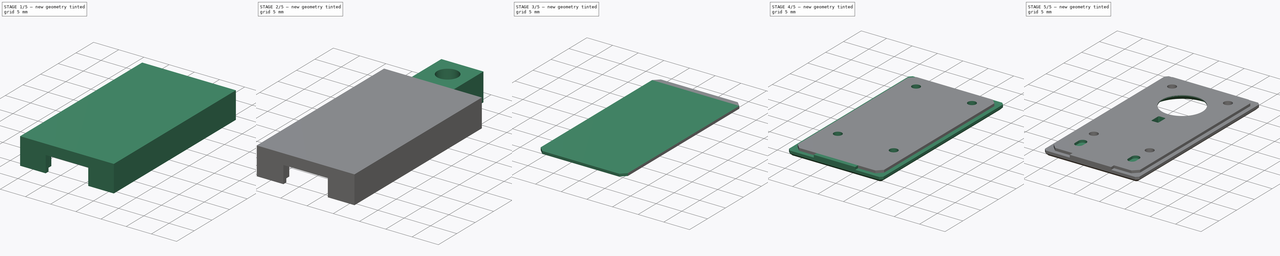
[diagram: build sequence overview — one tinted view per stage of 5, left to right]
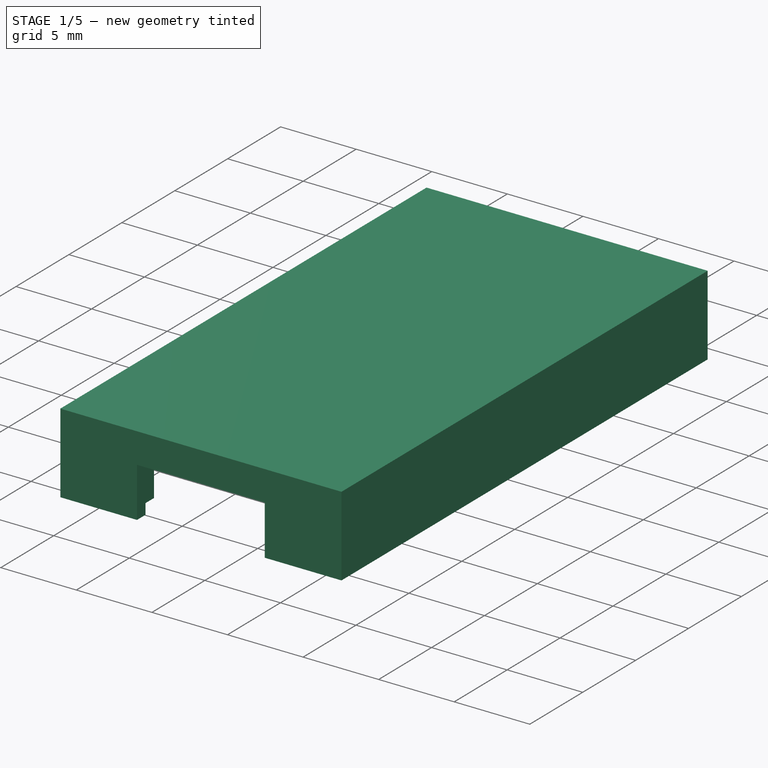
[diagram: stage 1 of 5 — iso view after this stage's code; geometry added in this stage tinted green]
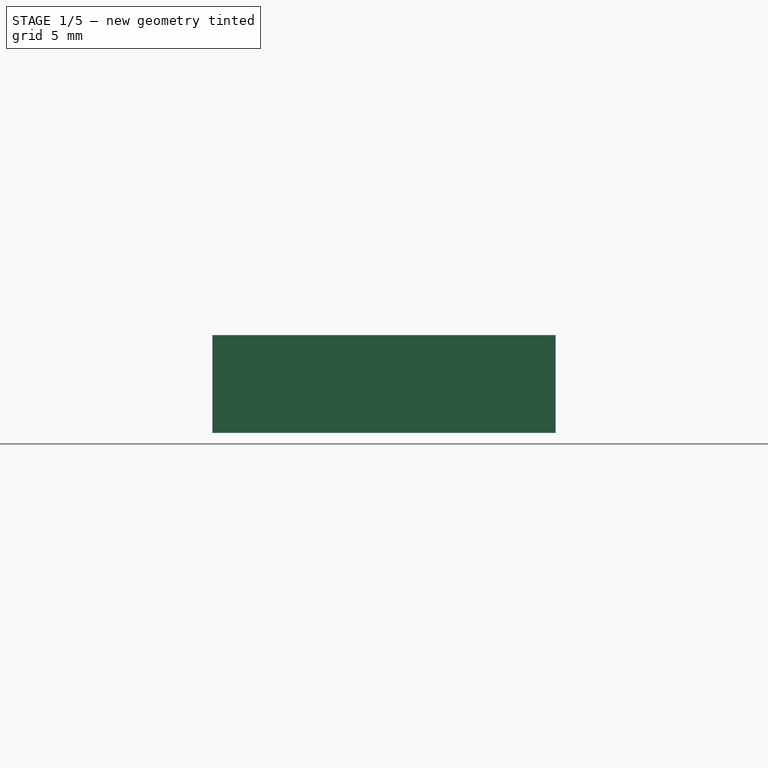
[diagram: stage 1 of 5 — front view after this stage's code; geometry added in this stage tinted green]
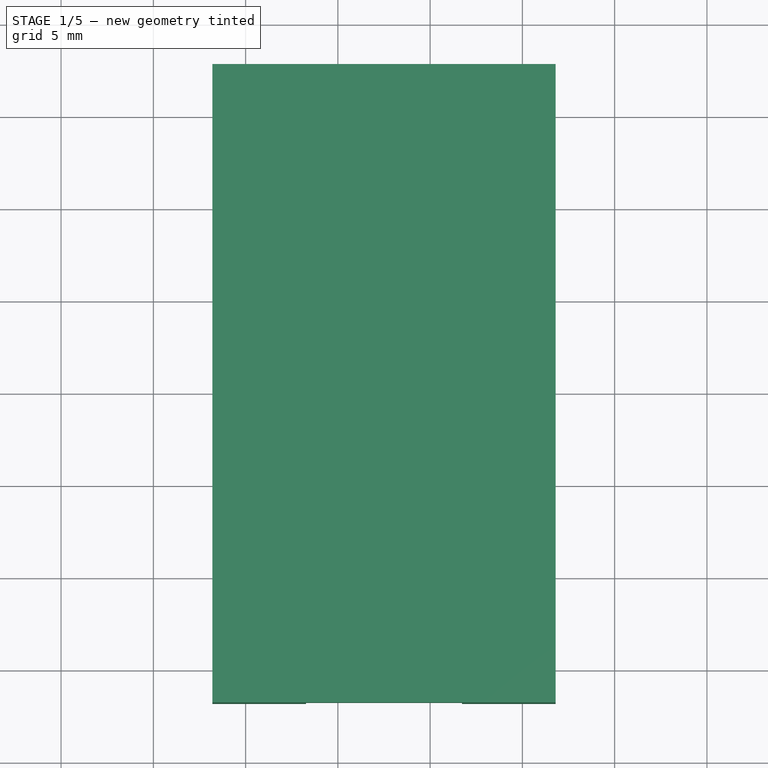
[diagram: stage 1 of 5 — top view after this stage's code; geometry added in this stage tinted green]
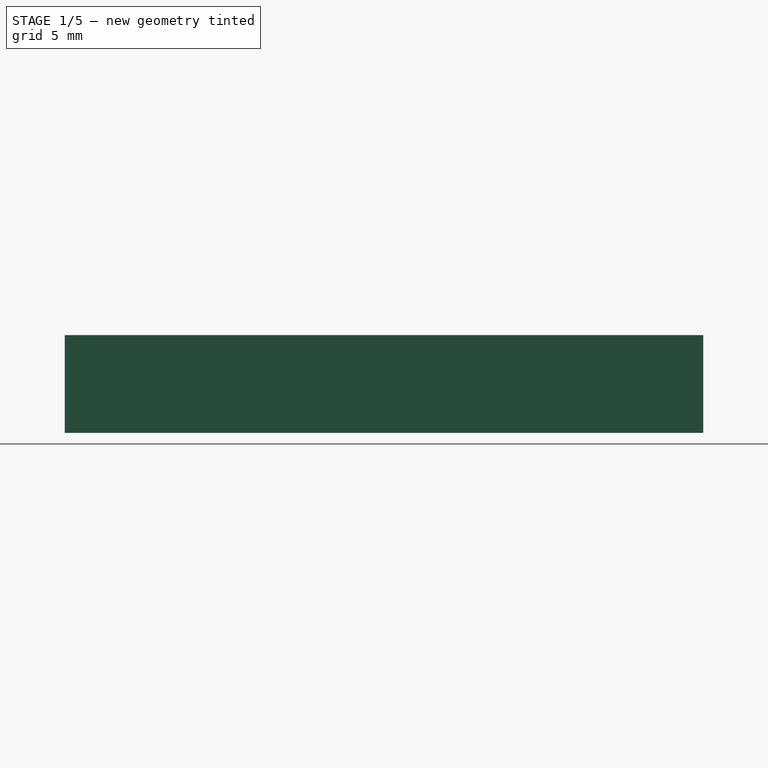
[diagram: stage 1 of 5 — right view after this stage's code; geometry added in this stage tinted green]
FCSTD DOCUMENT  (FreeCAD 1.0R39109 (Git))
Label: iPicoV5_Enclosure
License: All rights reserved
LicenseURL: https://en.wikipedia.org/wiki/All_rights_reserved
objects: Part::Feature×40, Sketcher::SketchObject×14, PartDesign::Pad×7, PartDesign::Pocket×6, PartDesign::Chamfer×5, App::Part×3, PartDesign::SubShapeBinder×3, PartDesign::Body×2, Spreadsheet::Sheet×1, PartDesign::Thickness×1, PartDesign::Fillet×1, PartDesign::Hole×1
note: 136 computed .brp shape members not serialized (recipe doc carries the construction recipe); baked Part::Feature solids carry a one-line shape summary decoded from their .brp

FEATURE [Part::Feature] Part__Feature  label="R_0402_1005Metric"
  Placement = pos=(10.3,9.85,1.195) rot=(0,0,1;1.5708rad)
  shape: bbox 0.5 x 1 x 0.35 mm, 26 faces (baked)
FEATURE [Part::Feature] Part__Feature001  label="C_0402_1005Metric"
  Placement = pos=(13.1,21.35,1.195) rot=(0,0,1;1.5708rad)
  shape: bbox 0.5 x 1 x 0.5 mm, 28 faces (baked)
FEATURE [Part::Feature] Part__Feature002  label="R_0402_1005Metric001"
  Placement = pos=(2,11.75,1.195) rot=(0,0,1;1.5708rad)
  shape: bbox 0.5 x 1 x 0.35 mm, 26 faces (baked)
FEATURE [Part::Feature] Part__Feature003  label="C_0402_1005Metric001"
  Placement = pos=(13.1,16.98,1.195) rot=(0,0,-1;1.5708rad)
  shape: bbox 0.5 x 1 x 0.5 mm, 28 faces (baked)
FEATURE [Part::Feature] Part__Feature004  label="C_0402_1005Metric002"
  Placement = pos=(4.95,7.5,1.195) rot=(0,0,1;3.14159rad)
  shape: bbox 1 x 0.5 x 0.5 mm, 28 faces (baked)
FEATURE [Part::Feature] Part__Feature005  label="C_0402_1005Metric003"
  Placement = pos=(11.5,12.05,1.195) rot=(0,0,1;3.14159rad)
  shape: bbox 1 x 0.5 x 0.5 mm, 28 faces (baked)
FEATURE [Part::Feature] Part__Feature006  label="R_0402_1005Metric002"
  Placement = pos=(7.2,12.1,1.195) rot=(0,0,1;0rad)
  shape: bbox 1 x 0.5 x 0.35 mm, 26 faces (baked)
FEATURE [Part::Feature] Part__Feature007  label="C_0402_1005Metric004"
  Placement = pos=(5.7,12.45,1.195) rot=(0,0,1;1.5708rad)
  shape: bbox 0.5 x 1 x 0.5 mm, 28 faces (baked)
FEATURE [Part::Feature] Part__Feature008  label="C_0402_1005Metric005"
  Placement = pos=(2,15.85,1.195) rot=(0,0,-1;1.5708rad)
  shape: bbox 0.5 x 1 x 0.5 mm, 28 faces (baked)
FEATURE [Part::Feature] Part__Feature009  label="C_0402_1005Metric006"
  Placement = pos=(7.8,14.3,1.195) rot=(0,0,-1;1.5708rad)
  shape: bbox 0.5 x 1 x 0.5 mm, 28 faces (baked)
FEATURE [Part::Feature] Part__Feature010  label="R_0402_1005Metric003"
  Placement = pos=(9.25,9.85,1.195) rot=(0,0,-1;1.5708rad)
  shape: bbox 0.5 x 1 x 0.35 mm, 26 faces (baked)
FEATURE [Part::Feature] Part__Feature011  label="R_0402_1005Metric004"
  Placement = pos=(8.6,25.25,1.195) rot=(0,0,1;3.14159rad)
  shape: bbox 1 x 0.5 x 0.35 mm, 26 faces (baked)
FEATURE [Part::Feature] Part__Feature012  label="COMPOUND"
  shape: bbox 10.65 x 13.5 x 2.4 mm, 183 faces (baked)
FEATURE [Part::Feature] Part__Feature013  label="COMPOUND001"
  shape: bbox 8.448 x 11.9 x 2.598 mm, 261 faces (baked)
FEATURE [App::Part] GT_USB_8016A  label="GT_USB-8016A"
  Group = -> [Part__Feature012,Part__Feature013]
  Origin = -> Origin
  Placement = pos=(7.5,3.8,1.195) rot=(0,0,1;0rad)
FEATURE [Part::Feature] Part__Feature014  label="R_0402_1005Metric005"
  Placement = pos=(13.3,11.55,1.195) rot=(0,0,-1;1.5708rad)
  shape: bbox 0.5 x 1 x 0.35 mm, 26 faces (baked)
FEATURE [Part::Feature] Part__Feature015  label="Crystal_SMD_2520-4Pin_2.5x2.0mm"
  Placement = pos=(9.2,27.5,1.195) rot=(0,0,1;1.5708rad)
  shape: bbox 2 x 2.5 x 0.83 mm, 168 faces (baked)
FEATURE [Part::Feature] Part__Feature016  label="C_0402_1005Metric007"
  Placement = pos=(5.1,29.8,1.195) rot=(0,0,1;0rad)
  shape: bbox 1 x 0.5 x 0.5 mm, 28 faces (baked)
FEATURE [Part::Feature] Part__Feature017  label="R_0402_1005Metric006"
  Placement = pos=(2,21.65,1.195) rot=(0,0,1;1.5708rad)
  shape: bbox 0.5 x 1 x 0.35 mm, 26 faces (baked)
FEATURE [Part::Feature] Part__Feature018  label="SOT-23"
  Placement = pos=(5.7,9.7625,1.195) rot=(0,0,1;0rad)
  shape: bbox 2.5 x 3 x 1.2 mm, 76 faces (baked)
FEATURE [Part::Feature] Part__Feature019  label="C_0402_1005Metric008"
  Placement = pos=(9.2,29.8,1.195) rot=(0,0,1;0rad)
  shape: bbox 1 x 0.5 x 0.5 mm, 28 faces (baked)
FEATURE [Part::Feature] Part__Feature020  label="C_0402_1005Metric009"
  Placement = pos=(3.2,10.05,1.195) rot=(0,0,1;1.5708rad)
  shape: bbox 0.5 x 1 x 0.5 mm, 28 faces (baked)
FEATURE [Part::Feature] Part__Feature021  label="SOT-23-6"
  Placement = pos=(5.8625,27.15,1.195) rot=(0,0,-1;1.5708rad)
  shape: bbox 2.9 x 2.8 x 1.55 mm, 124 faces (baked)
FEATURE [Part::Feature] Part__Feature022  label="C_0402_1005Metric010"
  Placement = pos=(2,17.75,1.195) rot=(0,0,-1;1.5708rad)
  shape: bbox 0.5 x 1 x 0.5 mm, 28 faces (baked)
FEATURE [Part::Feature] Part__Feature023  label="R_0402_1005Metric007"
  Placement = pos=(9.2,12.1,1.195) rot=(0,0,1;0rad)
  shape: bbox 1 x 0.5 x 0.35 mm, 26 faces (baked)
FEATURE [Part::Feature] Part__Feature024  label="C_0402_1005Metric011"
  Placement = pos=(2,19.7,1.195) rot=(0,0,-1;1.5708rad)
  shape: bbox 0.5 x 1 x 0.5 mm, 28 faces (baked)
FEATURE [Part::Feature] Part__Feature025  label="C_0402_1005Metric012"
  Placement = pos=(2,23.6,1.195) rot=(0,0,1;1.5708rad)
  shape: bbox 0.5 x 1 x 0.5 mm, 28 faces (baked)
FEATURE [Part::Feature] Part__Feature026  label="C_0402_1005Metric013"
  Placement = pos=(2,25.5,1.195) rot=(0,0,-1;1.5708rad)
  shape: bbox 0.5 x 1 x 0.5 mm, 28 faces (baked)
FEATURE [Part::Feature] Part__Feature027  label="iPico_V5 1.27.1"
  shape: bbox 2 x 3.02 x 0.611 mm, 428 faces, 14 solids (baked)
FEATURE [App::Part] USON_8_L3_0_W2_0_P0_50_BL_EP  label="USON-8_L3.0-W2.0-P0.50-BL-EP"
  Group = -> [Part__Feature027]
  Origin = -> Origin001
  Placement = pos=(11.5679,13.7,1.195) rot=(0,0,1;1.5708rad)
FEATURE [Part::Feature] Part__Feature028  label="R_0402_1005Metric008"
  Placement = pos=(8.2,9.85,1.195) rot=(0,0,-1;1.5708rad)
  shape: bbox 0.5 x 1 x 0.35 mm, 26 faces (baked)
FEATURE [Part::Feature] Part__Feature029  label="R_0402_1005Metric009"
  Placement = pos=(7,29.8,1.195) rot=(0,0,1;3.14159rad)
  shape: bbox 1 x 0.5 x 0.35 mm, 26 faces (baked)
FEATURE [Part::Feature] Part__Feature030  label="C_0402_1005Metric014"
  Placement = pos=(13.1,18.95,1.195) rot=(0,0,-1;1.5708rad)
  shape: bbox 0.5 x 1 x 0.5 mm, 28 faces (baked)
FEATURE [Part::Feature] Part__Feature031  label="IND-SMD_L2.0-W1.6_AOTA-B201610S3R3-101-T"
  Placement = pos=(4.11354,13.2,1.195) rot=(0,0,1;1.5708rad)
  shape: bbox 1.61 x 2 x 1 mm, 261 faces, 3 solids (baked)
FEATURE [Part::Feature] Part__Feature032  label="C_0402_1005Metric015"
  Placement = pos=(5.7,14.35,1.195) rot=(0,0,-1;1.5708rad)
  shape: bbox 0.5 x 1 x 0.5 mm, 28 faces (baked)
FEATURE [Part::Feature] Part__Feature033  label="C_0402_1005Metric016"
  Placement = pos=(11.25,26.4,1.195) rot=(0,0,1;1.5708rad)
  shape: bbox 0.5 x 1 x 0.5 mm, 28 faces (baked)
FEATURE [Part::Feature] Part__Feature034  label="Fuse_0402_1005Metric"
  Placement = pos=(6.85,7.5,1.195) rot=(0,0,1;3.14159rad)
  shape: bbox 1 x 0.52 x 0.35 mm, 26 faces (baked)
FEATURE [Part::Feature] Part__Feature035  label="RP2350A-QFN60"
  Placement = pos=(7.6,19.95,1.195) rot=(0,0,1;3.14159rad)
  shape: bbox 7.002 x 7.002 x 0.85 mm, 373 faces (baked)
FEATURE [Part::Feature] Part__Feature036  label="C_0402_1005Metric017"
  Placement = pos=(13.1,23.35,1.195) rot=(0,0,1;1.5708rad)
  shape: bbox 0.5 x 1 x 0.5 mm, 28 faces (baked)
FEATURE [Part::Feature] Part__Feature037  label="C_0402_1005Metric018"
  Placement = pos=(2.45,13.8,1.195) rot=(0,0,-1;1.5708rad)
  shape: bbox 0.5 x 1 x 0.5 mm, 28 faces (baked)
FEATURE [Part::Feature] Part__Feature038  label="LED_0603_1608Metric"
  Placement = pos=(7.4,17.45,-0.085) rot=(0.707107,-0.707107,0;3.14159rad)
  shape: bbox 0.8 x 1.6 x 1.1 mm, 50 faces (baked)
FEATURE [Part::Feature] Part__Feature039  label="iPico_V5_PCB"
  shape: bbox 15 x 31 x 1.11 mm, 22 faces (baked)
FEATURE [App::Part] iPico_V5_1  label="iPico_V5 1"
  Group = -> [Part__Feature,Part__Feature001,Part__Feature002,Part__Feature003,Part__Feature004,Part__Feature005,Part__Feature006,Part__Feature007,Part__Feature008,Part__Feature009,Part__Feature010,Part__Feature011,GT_USB_8016A,Part__Feature014,Part__Feature015,Part__Feature016,Part__Feature017,Part__Feature018,Part__Feature019,Part__Feature020,Part__Feature021,Part__Feature022,Part__Feature023,+16 more]
  Origin = -> Origin002
FEATURE [PartDesign::SubShapeBinder] Binder
  BindCopyOnChange = 0
  BindMode = 0
  ClaimChildren = false
  Context = -> Body [Binder.]
  Fuse = false
  MakeFace = true
  OffsetFill = false
  OffsetIntersection = false
  OffsetJoinType = 0
  OffsetOpenResult = false
  PartialLoad = false
  Relative = true
  Support = -> [iPico_V5_1]
  _Version = 2
FEATURE [Sketcher::SketchObject] Sketch
  ArcFitTolerance = 1e-06
  AttachmentSupport = -> [Binder]
  ExternalGeometry = -> [Binder]
  FullyConstrained = true
  MakeInternals = false
  MapMode = 5
  Placement = pos=(0,0,0) rot=(1,0,0;3.14159rad)
  expr: Constraints[12] = <<ss>>.board_gap
  expr: Constraints[13] = <<ss>>.board_gap
  sketch-geometry (7):
    g0: GeomPoint X=7.5 Y=-15.5 Z=0
    g1: GeomPoint [constr] X=7.5 Y=-15.5 Z=0
    g2: LineSegment StartX=15.2 StartY=-31.2 StartZ=0 EndX=15.2 EndY=0.2 EndZ=0
    g3: LineSegment StartX=15.2 StartY=0.2 StartZ=0 EndX=-0.2 EndY=0.2 EndZ=0
    g4: LineSegment StartX=-0.2 StartY=0.2 StartZ=0 EndX=-0.2 EndY=-31.2 EndZ=0
    g5: LineSegment StartX=-0.2 StartY=-31.2 StartZ=0 EndX=15.2 EndY=-31.2 EndZ=0
    g6: GeomPoint [constr] X=7.5 Y=-15.5 Z=0
  constraints (14):
    c: Coincident(g1,g0)
    c: Symmetric(g-3,g-1,g0)
    c: Coincident(g2,g3)
    c: Coincident(g3,g4)
    c: Coincident(g4,g5)
    c: Coincident(g5,g2)
    c: Vertical(g2)
    c: Vertical(g4)
    c: Horizontal(g3)
    c: Horizontal(g5)
    c: Symmetric(g4,g2,g6)
    c: Coincident(g6,g0)
    c: DistanceX(g3,g-1) = 0.2
    c: DistanceY(g-3,g2) = 0.2
FEATURE [Spreadsheet::Sheet] Spreadsheet  label="ss"
  cells = A2='board_gap; B2(board_gap)=0.2; A3='case_thickness; B3(case_thickness)=1.6
FEATURE [PartDesign::Pad] Pad
  Direction = (0,0,-1)
  Length = 3
  Length2 = 10
  Profile = -> Sketch
  ReferenceAxis = -> Sketch [N_Axis]
  Reversed = true
  Suppressed = false
  Type = 0
FEATURE [PartDesign::Thickness] Thickness
  Base = -> Pad [Face5]
  BaseFeature = -> Pad
  Intersection = false
  Join = 1
  Mode = 0
  SupportTransform = false
  Suppressed = false
  Value = 1.6
  expr: Value = <<ss>>.case_thickness
FEATURE [Sketcher::SketchObject] Sketch001
  ArcFitTolerance = 1e-06
  AttachmentSupport = -> [Thickness]
  ExternalGeometry = -> [Thickness]
  FullyConstrained = true
  MakeInternals = false
  MapMode = 5
  Placement = pos=(0,0,0) rot=(1,0,0;3.14159rad)
  expr: Constraints[21] = <<ss>>.case_thickness / 2
  expr: Constraints[22] = <<ss>>.case_thickness / 2
  sketch-geometry (10):
    g0: LineSegment StartX=-1.8 StartY=1.8 StartZ=0 EndX=-1.8 EndY=-32.8 EndZ=0
    g1: LineSegment StartX=-1.8 StartY=-32.8 StartZ=0 EndX=16.8 EndY=-32.8 EndZ=0
    g2: LineSegment StartX=16.8 StartY=-32.8 StartZ=0 EndX=16.8 EndY=1.8 EndZ=0
    g3: LineSegment StartX=16.8 StartY=1.8 StartZ=0 EndX=-1.8 EndY=1.8 EndZ=0
    g4: GeomPoint X=7.5 Y=-15.5 Z=0
    g5: LineSegment StartX=16 StartY=-32 StartZ=0 EndX=16 EndY=1 EndZ=0
    g6: LineSegment StartX=16 StartY=1 StartZ=0 EndX=-1 EndY=1 EndZ=0
    g7: LineSegment StartX=-1 StartY=1 StartZ=0 EndX=-1 EndY=-32 EndZ=0
    g8: LineSegment StartX=-1 StartY=-32 StartZ=0 EndX=16 EndY=-32 EndZ=0
    g9: GeomPoint [constr] X=7.5 Y=-15.5 Z=0
  constraints (23):
    c: Coincident(g0,g1)
    c: Coincident(g1,g2)
    c: Coincident(g2,g3)
    c: Coincident(g3,g0)
    c: Vertical(g0)
    c: Vertical(g2)
    c: Horizontal(g1)
    c: Horizontal(g3)
    c: Coincident(g0,g-4)
    c: Coincident(g1,g-6)
    c: Symmetric(g2,g0,g4)
    c: Coincident(g5,g6)
    c: Coincident(g6,g7)
    c: Coincident(g7,g8)
    c: Coincident(g8,g5)
    c: Vertical(g5)
    c: Vertical(g7)
    c: Horizontal(g6)
    c: Horizontal(g8)
    c: Symmetric(g7,g5,g9)
    c: Coincident(g9,g4)
    c: DistanceX(g0,g6) = 0.8
    c: DistanceY(g5,g2) = 0.8
FEATURE [PartDesign::Pad] Pad001
  BaseFeature = -> Thickness
  Direction = (0,0,-1)
  Length = 0.7
  Length2 = 10
  Profile = -> Sketch001
  ReferenceAxis = -> Sketch001 [N_Axis]
  Refine = true
  Suppressed = false
  Type = 0
FEATURE [Sketcher::SketchObject] Sketch002
  ArcFitTolerance = 1e-06
  AttachmentSupport = -> [Pad001]
  ExternalGeometry = -> [Binder,Pad001]
  FullyConstrained = true
  MakeInternals = false
  MapMode = 5
  Placement = pos=(0,-1.8,-8e-16) rot=(1,0,0;1.5708rad)
  sketch-geometry (5):
    g0: GeomPoint X=7.5 Y=1.295 Z=0
    g1: LineSegment StartX=3.275 StartY=2.595 StartZ=0 EndX=3.275 EndY=-0.7 EndZ=0
    g2: LineSegment StartX=3.275 StartY=-0.7 StartZ=0 EndX=11.725 EndY=-0.7 EndZ=0
    g3: LineSegment StartX=11.725 StartY=-0.7 StartZ=0 EndX=11.725 EndY=2.595 EndZ=0
    g4: LineSegment StartX=11.725 StartY=2.595 StartZ=0 EndX=3.275 EndY=2.595 EndZ=0
  constraints (13):
    c: Symmetric(g-6,g-4,g0)
    c: Coincident(g1,g2)
    c: Coincident(g2,g3)
    c: Coincident(g3,g4)
    c: Coincident(g4,g1)
    c: Vertical(g1)
    c: Vertical(g3)
    c: Horizontal(g2)
    c: Horizontal(g4)
    c: PointOnObject(g2,g-7)
    c: DistanceX(g1,g-4) = 0.1
    c: DistanceY(g-3,g1) = 0.1
    c: DistanceX(g-6,g3) = 0.1
FEATURE [PartDesign::Pocket] Pocket
  BaseFeature = -> Pad001
  Direction = (0,1,-2e-16)
  Length = 5
  Length2 = 5
  Profile = -> Sketch002
  ReferenceAxis = -> Sketch002 [N_Axis]
  Suppressed = false
  Type = 0
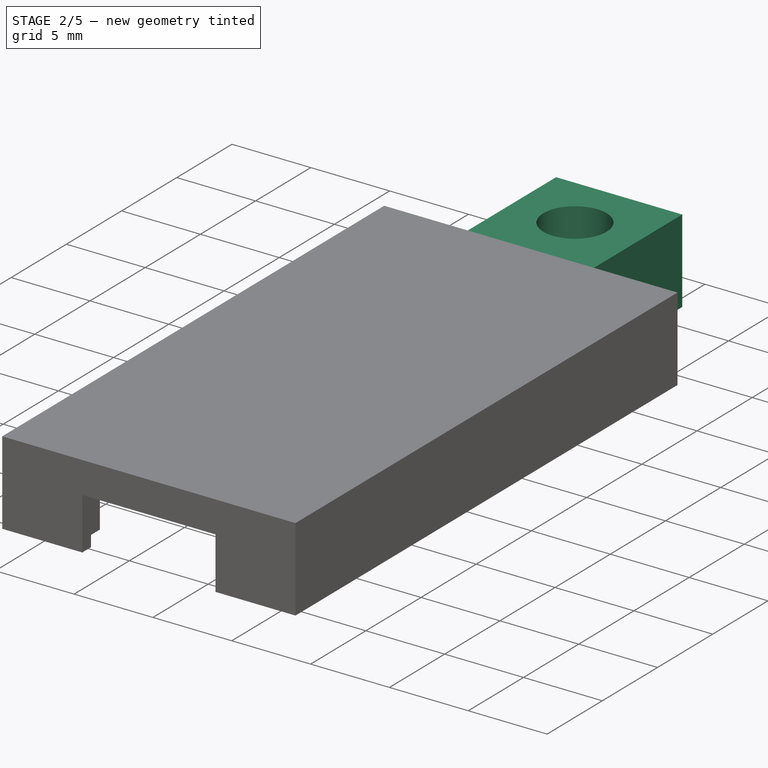
[diagram: stage 2 of 5 — iso view after this stage's code; geometry added in this stage tinted green]
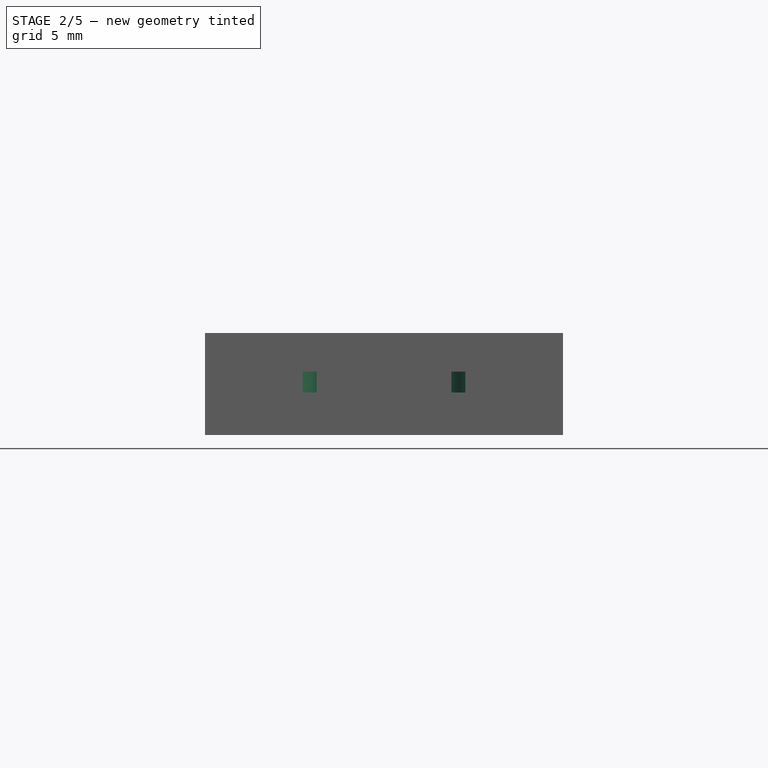
[diagram: stage 2 of 5 — front view after this stage's code; geometry added in this stage tinted green]
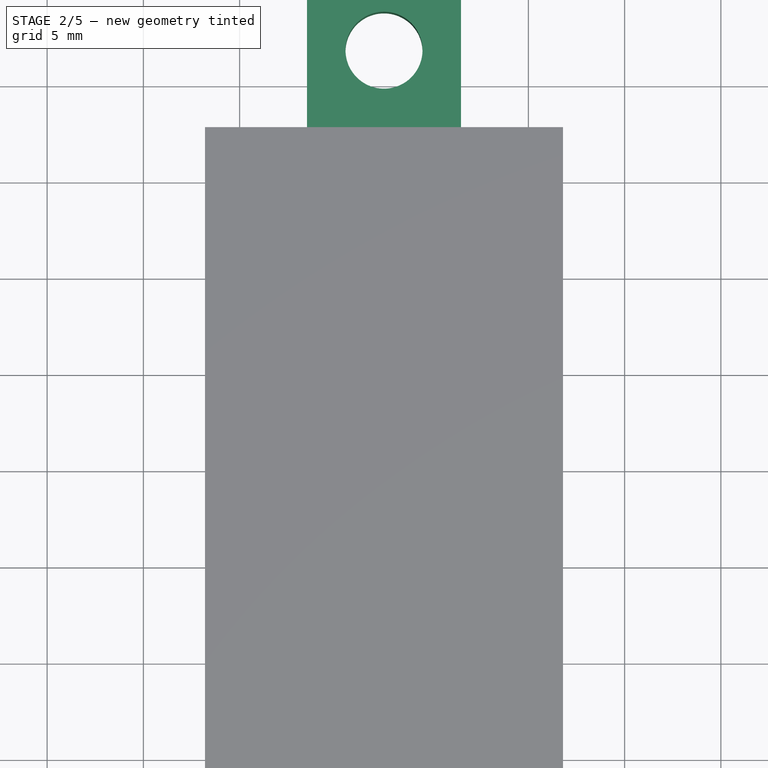
[diagram: stage 2 of 5 — top view after this stage's code; geometry added in this stage tinted green]
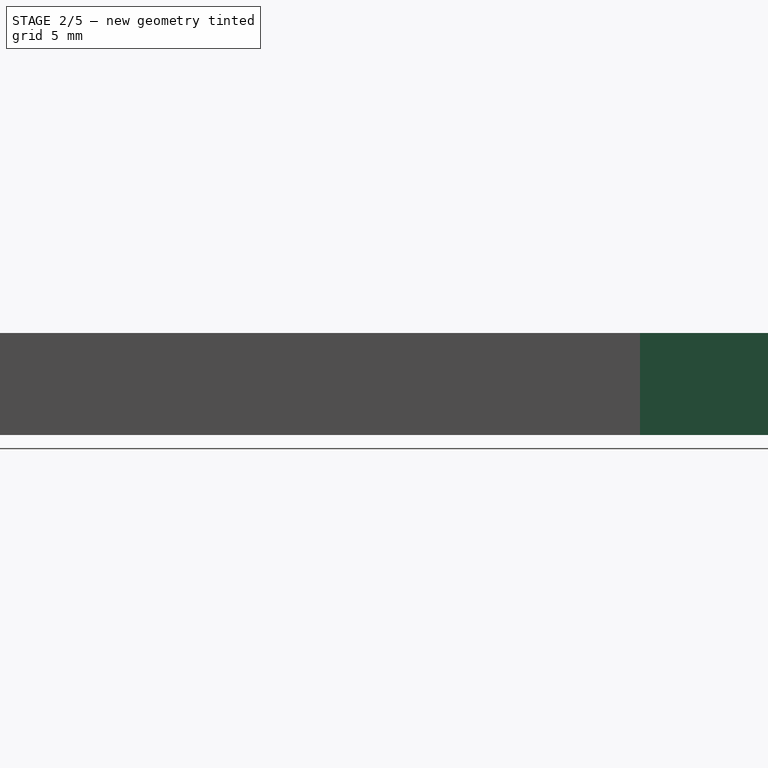
[diagram: stage 2 of 5 — right view after this stage's code; geometry added in this stage tinted green]
FEATURE [Sketcher::SketchObject] Sketch003
  ArcFitTolerance = 1e-06
  AttachmentSupport = -> [Pocket]
  ExternalGeometry = -> [Binder]
  FullyConstrained = true
  MakeInternals = false
  MapMode = 5
  Placement = pos=(0,0,3) rot=(1,0,0;3.14159rad)
  sketch-geometry (4):
    g0: Circle CenterX=2 CenterY=-7 CenterZ=0 NormalX=0 NormalY=0 NormalZ=1 AngleXU=0 Radius=2
    g1: Circle CenterX=13 CenterY=-7 CenterZ=0 NormalX=0 NormalY=0 NormalZ=1 AngleXU=0 Radius=2
    g2: Circle CenterX=2 CenterY=-29 CenterZ=0 NormalX=0 NormalY=0 NormalZ=1 AngleXU=0 Radius=2
    g3: Circle CenterX=13 CenterY=-29 CenterZ=0 NormalX=0 NormalY=0 NormalZ=1 AngleXU=0 Radius=2
  constraints (8):
    c: Coincident(g0,g-3)
    c: Coincident(g1,g-4)
    c: Coincident(g2,g-5)
    c: Coincident(g3,g-6)
    c: Equal(g3,g2)
    c: Equal(g2,g0)
    c: Equal(g0,g1)
    c: Radius(g0) = 2
FEATURE [PartDesign::Pad] Pad002
  BaseFeature = -> Pocket
  Direction = (0,0,-1)
  Length = 10
  Length2 = 10
  Offset = -0.4
  Profile = -> Sketch003
  ReferenceAxis = -> Sketch003 [N_Axis]
  Suppressed = false
  Type = 3
  UpToFace = -> Binder [Face2747]
FEATURE [Sketcher::SketchObject] Sketch004
  ArcFitTolerance = 1e-06
  AttachmentSupport = -> [Pad002]
  ExternalGeometry = -> [Pad002]
  FullyConstrained = true
  MakeInternals = false
  MapMode = 5
  Placement = pos=(0,0,1.51) rot=(1,0,0;3.14159rad)
  sketch-geometry (4):
    g0: Circle CenterX=2 CenterY=-7 CenterZ=0 NormalX=0 NormalY=0 NormalZ=1 AngleXU=0 Radius=1
    g1: Circle CenterX=13 CenterY=-7 CenterZ=0 NormalX=0 NormalY=0 NormalZ=1 AngleXU=0 Radius=1
    g2: Circle CenterX=2 CenterY=-29 CenterZ=0 NormalX=0 NormalY=0 NormalZ=1 AngleXU=0 Radius=1
    g3: Circle CenterX=13 CenterY=-29 CenterZ=0 NormalX=0 NormalY=0 NormalZ=1 AngleXU=0 Radius=1
  constraints (8):
    c: Coincident(g0,g-3)
    c: Coincident(g1,g-4)
    c: Coincident(g2,g-5)
    c: Coincident(g3,g-6)
    c: Equal(g3,g2)
    c: Equal(g2,g0)
    c: Equal(g0,g1)
    c: Radius(g0) = 1
FEATURE [PartDesign::Pocket] Pocket001
  BaseFeature = -> Pad002
  Direction = (0,0,1)
  Length = 2.1
  Length2 = 5
  Profile = -> Sketch004
  ReferenceAxis = -> Sketch004 [N_Axis]
  Suppressed = false
  Type = 0
FEATURE [Sketcher::SketchObject] Sketch009
  ArcFitTolerance = 1e-06
  AttachmentSupport = -> [Pocket001]
  ExternalGeometry = -> [Pocket001]
  FullyConstrained = true
  MakeInternals = false
  MapMode = 5
  Placement = pos=(0,32.8,0) rot=(0,0.707107,0.707107;3.14159rad)
  sketch-geometry (6):
    g0: GeomPoint X=-7.5 Y=1.95 Z=0
    g1: LineSegment StartX=-3.5 StartY=-0.7 StartZ=0 EndX=-3.5 EndY=4.6 EndZ=0
    g2: LineSegment StartX=-3.5 StartY=4.6 StartZ=0 EndX=-11.5 EndY=4.6 EndZ=0
    g3: LineSegment StartX=-11.5 StartY=4.6 StartZ=0 EndX=-11.5 EndY=-0.7 EndZ=0
    g4: LineSegment StartX=-11.5 StartY=-0.7 StartZ=0 EndX=-3.5 EndY=-0.7 EndZ=0
    g5: GeomPoint [constr] X=-7.5 Y=1.95 Z=0
  constraints (13):
    c: Symmetric(g-3,g-4,g0)
    c: Coincident(g1,g2)
    c: Coincident(g2,g3)
    c: Coincident(g3,g4)
    c: Coincident(g4,g1)
    c: Vertical(g1)
    c: Vertical(g3)
    c: Horizontal(g2)
    c: Horizontal(g4)
    c: Symmetric(g3,g1,g5)
    c: Coincident(g5,g0)
    c: PointOnObject(g2,g-3)
    c: DistanceX(g2,g2) = 8
FEATURE [PartDesign::Pad] Pad006
  BaseFeature = -> Pocket001
  Direction = (0,1,-2e-16)
  Length = 8
  Length2 = 10
  Profile = -> Sketch009
  ReferenceAxis = -> Sketch009 [N_Axis]
  Refine = true
  Suppressed = false
  Type = 0
FEATURE [Sketcher::SketchObject] Sketch010
  ArcFitTolerance = 1e-06
  AttachmentSupport = -> [Pad006]
  ExternalGeometry = -> [Pad006]
  FullyConstrained = true
  MakeInternals = false
  MapMode = 5
  Placement = pos=(0,0,4.6) rot=(0,0,1;0rad)
  sketch-geometry (2):
    g0: GeomPoint X=7.5 Y=36.8 Z=0
    g1: Circle CenterX=7.5 CenterY=36.8 CenterZ=0 NormalX=0 NormalY=0 NormalZ=1 AngleXU=0 Radius=2
  constraints (3):
    c: Symmetric(g-4,g-3,g0)
    c: Coincident(g1,g0)
    c: Radius(g1) = 2
FEATURE [PartDesign::Pocket] Pocket002
  BaseFeature = -> Pad006
  Direction = (0,0,-1)
  Length = 5
  Length2 = 5
  Profile = -> Sketch010
  ReferenceAxis = -> Sketch010 [N_Axis]
  Suppressed = false
  Type = 1
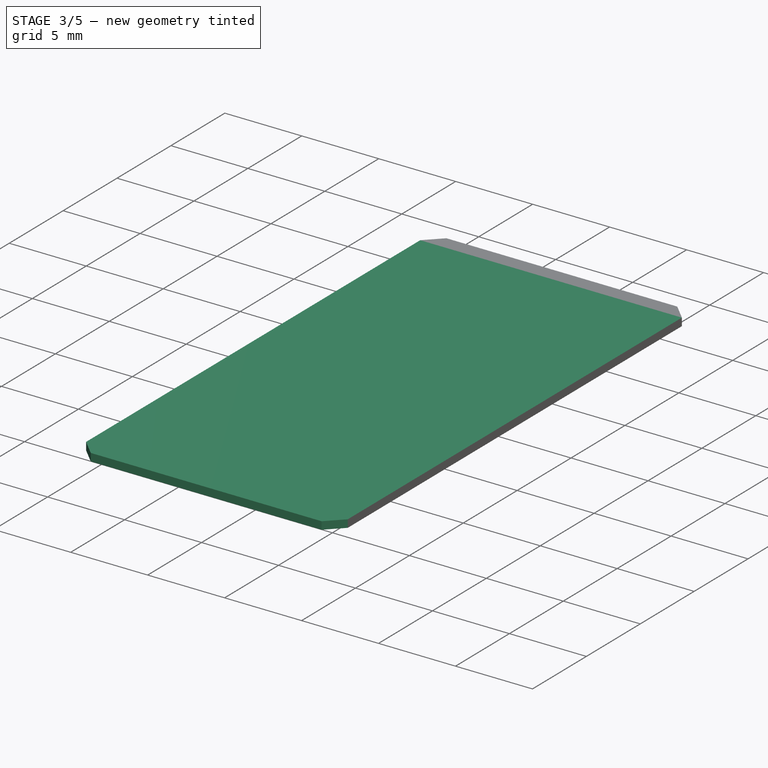
[diagram: stage 3 of 5 — iso view after this stage's code; geometry added in this stage tinted green]
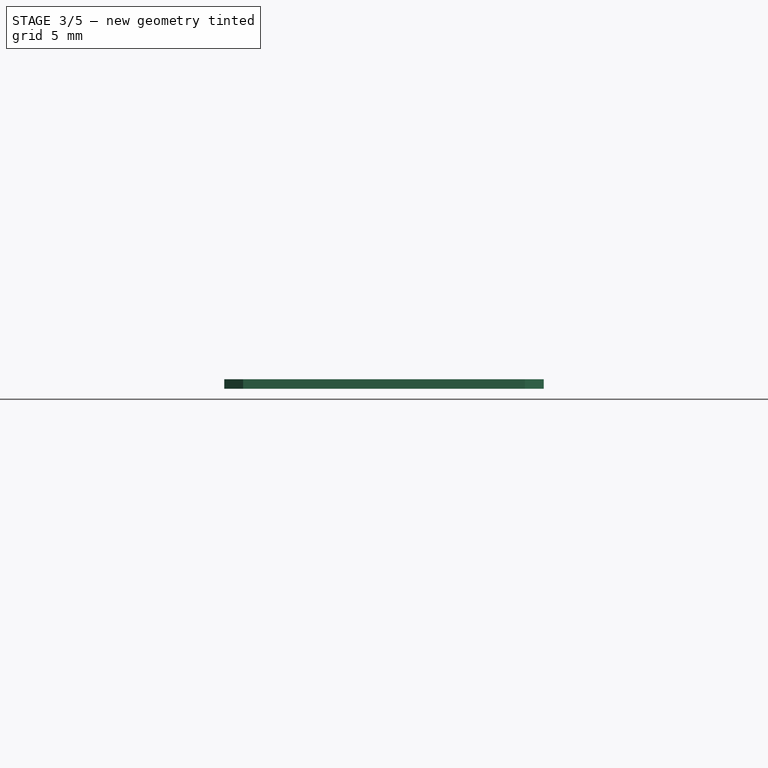
[diagram: stage 3 of 5 — front view after this stage's code; geometry added in this stage tinted green]
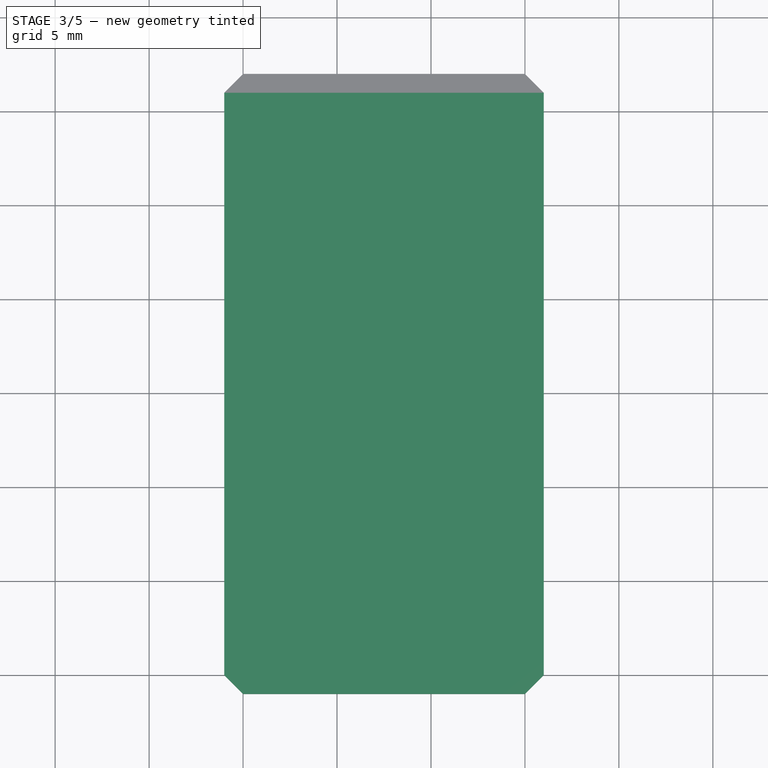
[diagram: stage 3 of 5 — top view after this stage's code; geometry added in this stage tinted green]
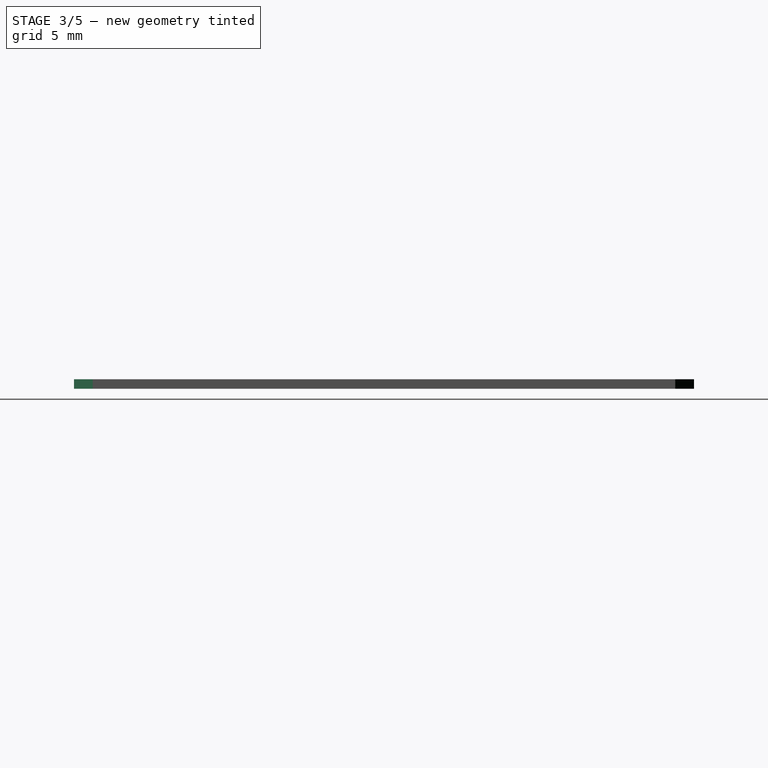
[diagram: stage 3 of 5 — right view after this stage's code; geometry added in this stage tinted green]
FEATURE [PartDesign::Fillet] Fillet
  Base = -> Pocket002 [Edge36,Edge34]
  BaseFeature = -> Pocket002
  Radius = 3
  SupportTransform = false
  Suppressed = false
  UseAllEdges = false
FEATURE [PartDesign::Chamfer] Chamfer
  Angle = 45
  Base = -> Fillet [Edge33,Edge18,Edge21,Edge30,Edge60,Edge58,Edge56,Edge55]
  BaseFeature = -> Fillet
  ChamferType = 0
  FlipDirection = false
  Size = 0.5
  Size2 = 1
  SupportTransform = false
  Suppressed = false
  UseAllEdges = false
FEATURE [PartDesign::Chamfer] Chamfer001
  Angle = 45
  Base = -> Chamfer [Face1,Edge22,Edge26,Edge30,Edge37,Edge41]
  BaseFeature = -> Chamfer
  ChamferType = 0
  FlipDirection = false
  Size = 0.5
  Size2 = 1
  SupportTransform = false
  Suppressed = false
  UseAllEdges = false
FEATURE [PartDesign::SubShapeBinder] Binder001
  BindCopyOnChange = 0
  BindMode = 0
  ClaimChildren = false
  Context = -> Body001 [Binder001.]
  Fuse = false
  MakeFace = true
  OffsetFill = false
  OffsetIntersection = false
  OffsetJoinType = 0
  OffsetOpenResult = false
  PartialLoad = false
  Relative = true
  Support = -> [Body]
  _Version = 2
FEATURE [Sketcher::SketchObject] Sketch011
  ArcFitTolerance = 1e-06
  AttachmentSupport = -> [Binder001]
  ExternalGeometry = -> [Binder001]
  FullyConstrained = true
  MakeInternals = false
  MapMode = 5
  Placement = pos=(0,0,0) rot=(1,0,0;3.14159rad)
  sketch-geometry (18):
    g0: GeomPoint X=7.5 Y=-15.5 Z=0
    g1: LineSegment StartX=16 StartY=-31 StartZ=0 EndX=16 EndY=6.1284e-12 EndZ=0
    g2: LineSegment StartX=15 StartY=1 StartZ=0 EndX=-6.1302e-12 EndY=1 EndZ=0
    g3: LineSegment StartX=-1 StartY=6.1294e-12 StartZ=0 EndX=-1 EndY=-31 EndZ=0
    g4: LineSegment StartX=-5.7143e-12 StartY=-32 StartZ=0 EndX=15 EndY=-32 EndZ=0
    g5: GeomPoint [constr] X=7.5 Y=-15.5 Z=0
    g6: ArcOfCircle [constr] CenterX=-6.1296e-12 CenterY=6.1294e-12 CenterZ=0 NormalX=0 NormalY=0 NormalZ=1 AngleXU=0 Radius=1 StartAngle=1.5708 EndAngle=3.14159
    g7: GeomPoint [constr] X=-1 Y=1 Z=0
    g8: LineSegment StartX=-6.1295e-12 StartY=1 StartZ=0 EndX=-1 EndY=6.1294e-12 EndZ=0
    g9: ArcOfCircle [constr] CenterX=15 CenterY=6.1291e-12 CenterZ=0 NormalX=0 NormalY=0 NormalZ=1 AngleXU=0 Radius=1 StartAngle=0 EndAngle=1.5708
    g10: GeomPoint [constr] X=16 Y=1 Z=0
    g11: LineSegment StartX=16 StartY=6.1284e-12 StartZ=0 EndX=15 EndY=1 EndZ=0
    g12: ArcOfCircle [constr] CenterX=15 CenterY=-31 CenterZ=0 NormalX=0 NormalY=0 NormalZ=1 AngleXU=0 Radius=1 StartAngle=4.71239 EndAngle=6.28319
    g13: GeomPoint [constr] X=16 Y=-32 Z=0
    g14: LineSegment StartX=15 StartY=-32 StartZ=0 EndX=16 EndY=-31 EndZ=0
    g15: ArcOfCircle [constr] CenterX=-8.2534e-12 CenterY=-31 CenterZ=0 NormalX=0 NormalY=0 NormalZ=1 AngleXU=0 Radius=1 StartAngle=3.14159 EndAngle=4.71239
    g16: GeomPoint [constr] X=-1 Y=-32 Z=0
    g17: LineSegment StartX=-1 StartY=-31 StartZ=0 EndX=-5.7143e-12 EndY=-32 EndZ=0
  constraints (37):
    c: Symmetric(g-11,g-7,g0)
    c: Vertical(g1)
    c: Vertical(g3)
    c: Horizontal(g2)
    c: Horizontal(g4)
    c: Symmetric(g7,g13,g5)
    c: Coincident(g5,g0)
    c: Horizontal(g7,g-4)
    c: Vertical(g7,g-5)
    c: PointOnObject(g7,g2)
    c: PointOnObject(g7,g3)
    c: Tangent(g2,g6) = -1.5708
    c: Tangent(g3,g6) = -1.5708
    c: Coincident(g8,g2)
    c: Coincident(g8,g3)
    c: PointOnObject(g10,g2)
    c: PointOnObject(g10,g1)
    c: Tangent(g2,g9) = -1.5708
    c: Tangent(g1,g9) = -1.5708
    c: Coincident(g11,g2)
    c: Coincident(g11,g1)
    c: PointOnObject(g13,g1)
    c: PointOnObject(g13,g4)
    c: Tangent(g1,g12) = -1.5708
    c: Tangent(g4,g12) = -1.5708
    c: Coincident(g14,g1)
    c: Coincident(g14,g4)
    c: PointOnObject(g16,g3)
    c: PointOnObject(g16,g4)
    c: Tangent(g3,g15) = -1.5708
    c: Tangent(g4,g15) = -1.5708
    c: Coincident(g17,g3)
    c: Coincident(g17,g4)
    c: Equal(g8,g11)
    c: Equal(g11,g14)
    c: Equal(g14,g17)
    c: DistanceX(g-7,g4) = 0.5
FEATURE [PartDesign::Pad] Pad007
  Direction = (0,0,-1)
  Length = 0.5
  Length2 = 10
  Profile = -> Sketch011
  ReferenceAxis = -> Sketch011 [N_Axis]
  Suppressed = false
  Type = 0
FEATURE [PartDesign::Chamfer] Chamfer005
  Angle = 45
  Base = -> Chamfer001 [Edge155,Edge156,Edge157,Edge158]
  BaseFeature = -> Chamfer001
  ChamferType = 1
  FlipDirection = false
  Size = 0.2
  Size2 = 0.4
  SupportTransform = false
  Suppressed = false
  UseAllEdges = false
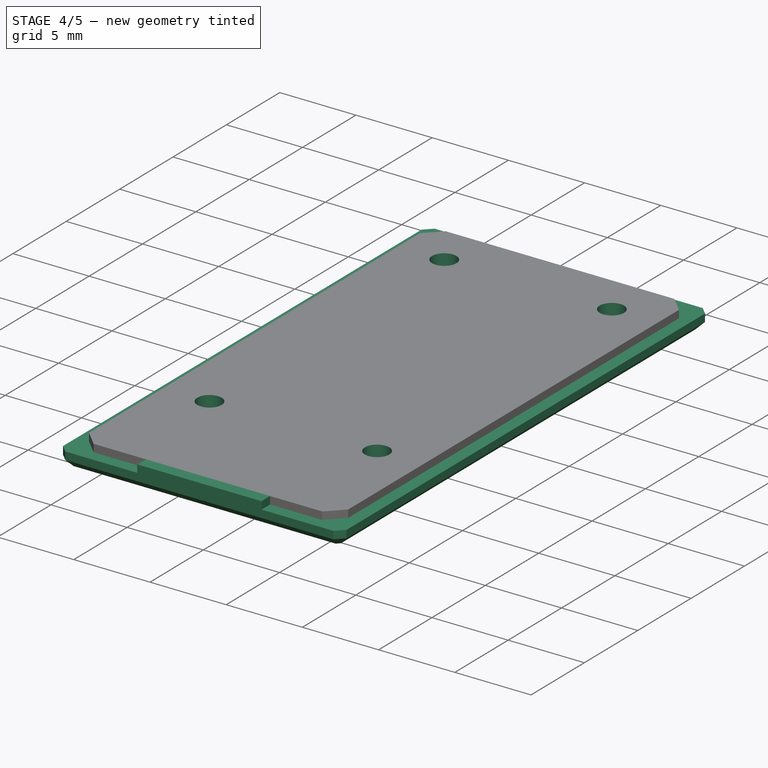
[diagram: stage 4 of 5 — iso view after this stage's code; geometry added in this stage tinted green]
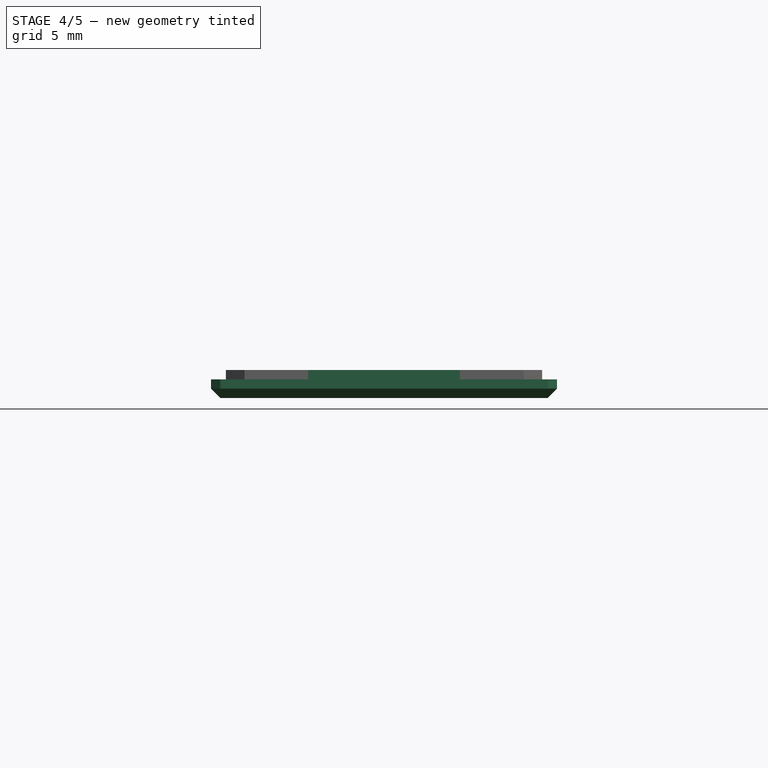
[diagram: stage 4 of 5 — front view after this stage's code; geometry added in this stage tinted green]
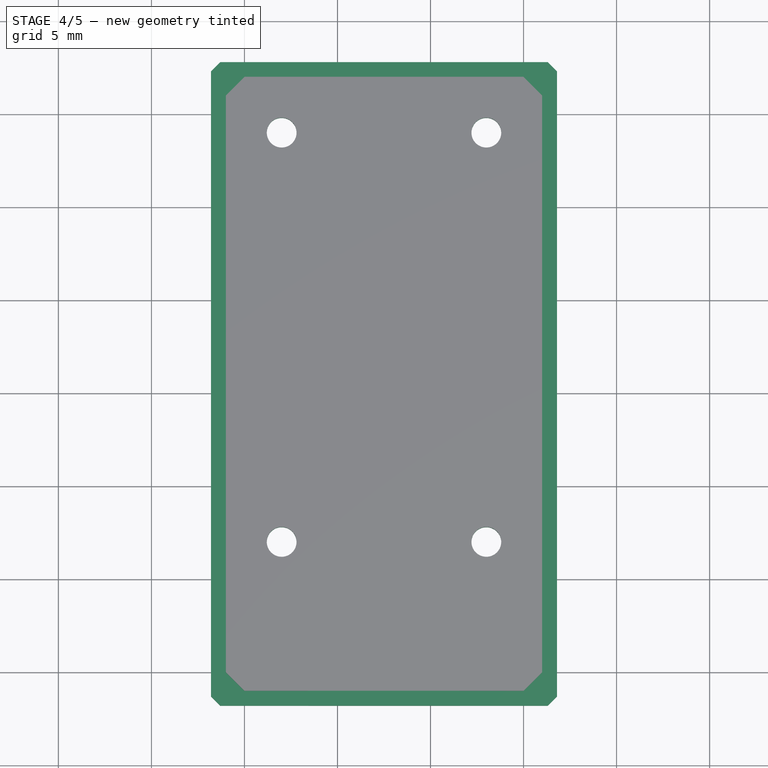
[diagram: stage 4 of 5 — top view after this stage's code; geometry added in this stage tinted green]
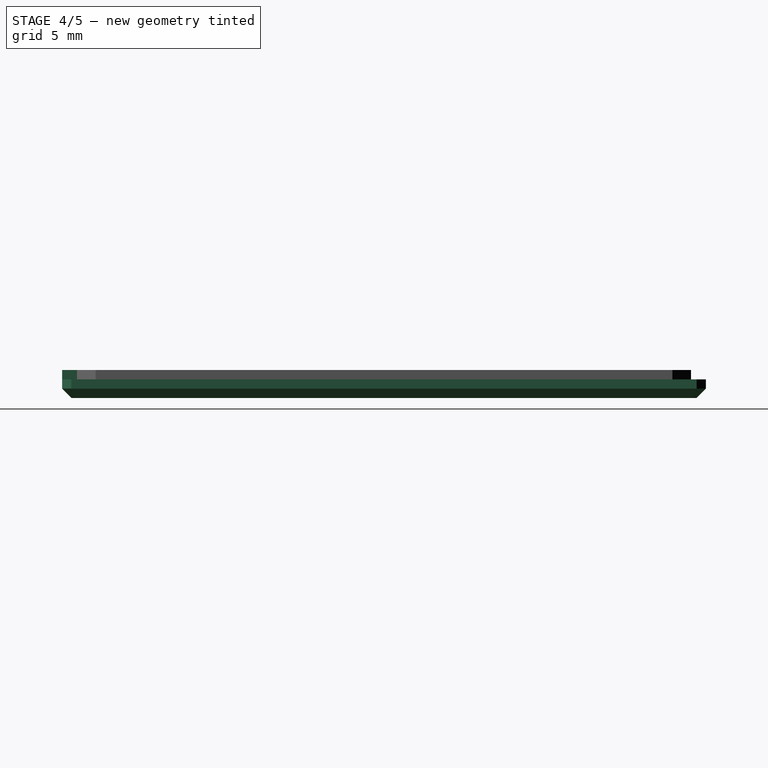
[diagram: stage 4 of 5 — right view after this stage's code; geometry added in this stage tinted green]
FEATURE [PartDesign::SubShapeBinder] Binder002
  BindCopyOnChange = 0
  BindMode = 0
  ClaimChildren = false
  Context = -> Body001 [Binder002.]
  Fuse = false
  MakeFace = true
  OffsetFill = false
  OffsetIntersection = false
  OffsetJoinType = 0
  OffsetOpenResult = false
  PartialLoad = false
  Relative = true
  Support = -> [iPico_V5_1]
  _Version = 2
FEATURE [Sketcher::SketchObject] Sketch012
  ArcFitTolerance = 1e-06
  AttachmentSupport = -> [Pad007]
  FullyConstrained = true
  MakeInternals = false
  MapMode = 5
  Placement = pos=(0,0,-0.5) rot=(1,0,0;3.14159rad)
  sketch-geometry (8):
    g0: LineSegment StartX=-1.3 StartY=1.8 StartZ=0 EndX=-1.8 EndY=1.3 EndZ=0
    g1: LineSegment StartX=-1.8 StartY=1.3 StartZ=0 EndX=-1.8 EndY=-32.3 EndZ=0
    g2: LineSegment StartX=-1.8 StartY=-32.3 StartZ=0 EndX=-1.3 EndY=-32.8 EndZ=0
    g3: LineSegment StartX=-1.3 StartY=-32.8 StartZ=0 EndX=16.3 EndY=-32.8 EndZ=0
    g4: LineSegment StartX=16.3 StartY=-32.8 StartZ=0 EndX=16.8 EndY=-32.3 EndZ=0
    g5: LineSegment StartX=16.8 StartY=-32.3 StartZ=0 EndX=16.8 EndY=1.3 EndZ=0
    g6: LineSegment StartX=16.8 StartY=1.3 StartZ=0 EndX=16.3 EndY=1.8 EndZ=0
    g7: LineSegment StartX=16.3 StartY=1.8 StartZ=0 EndX=-1.3 EndY=1.8 EndZ=0
  constraints (16):
    c: Coincident(g-4,g0)
    c: Coincident(g0,g-3)
    c: Coincident(g0,g1)
    c: Coincident(g1,g-6)
    c: Coincident(g1,g2)
    c: Coincident(g2,g-6)
    c: Coincident(g2,g3)
    c: Coincident(g3,g-7)
    c: Coincident(g3,g4)
    c: Coincident(g4,g-7)
    c: Coincident(g4,g5)
    c: Coincident(g5,g-5)
    c: Coincident(g5,g6)
    c: Coincident(g6,g-5)
    c: Coincident(g7,g6)
    c: Coincident(g7,g0)
FEATURE [PartDesign::Pad] Pad008
  BaseFeature = -> Pad007
  Direction = (0,0,-1)
  Length = 1
  Length2 = 10
  Profile = -> Sketch012
  ReferenceAxis = -> Sketch012 [N_Axis]
  Refine = true
  Suppressed = false
  Type = 0
FEATURE [Sketcher::SketchObject] Sketch013
  ArcFitTolerance = 1e-06
  AttachmentSupport = -> [Pad008]
  ExternalGeometry = -> [Binder001,Pad008]
  FullyConstrained = true
  MakeInternals = false
  MapMode = 5
  Placement = pos=(0,-1,0) rot=(1,0,0;1.5708rad)
  sketch-geometry (4):
    g0: LineSegment StartX=3.425 StartY=-0.5 StartZ=0 EndX=11.575 EndY=-0.5 EndZ=0
    g1: LineSegment StartX=11.575 StartY=-0.5 StartZ=0 EndX=11.575 EndY=0 EndZ=0
    g2: LineSegment StartX=11.575 StartY=0 StartZ=0 EndX=3.425 EndY=0 EndZ=0
    g3: LineSegment StartX=3.425 StartY=0 StartZ=0 EndX=3.425 EndY=-0.5 EndZ=0
  constraints (12):
    c: Coincident(g0,g1)
    c: Coincident(g1,g2)
    c: Coincident(g2,g3)
    c: Coincident(g3,g0)
    c: Horizontal(g0)
    c: Horizontal(g2)
    c: Vertical(g1)
    c: Vertical(g3)
    c: PointOnObject(g0,g-6)
    c: PointOnObject(g1,g-5)
    c: DistanceX(g-3,g2) = 0.15
    c: DistanceX(g1,g-4) = 0.15
FEATURE [PartDesign::Pad] Pad009
  BaseFeature = -> Pad008
  Direction = (0,-1,2e-16)
  Length = 10
  Length2 = 10
  Profile = -> Sketch013
  ReferenceAxis = -> Sketch013 [N_Axis]
  Refine = true
  Suppressed = false
  Type = 3
  UpToFace = -> Pad008 [Face12]
FEATURE [PartDesign::Chamfer] Chamfer002
  Angle = 45
  Base = -> Pad009 [Face20]
  BaseFeature = -> Pad009
  ChamferType = 0
  FlipDirection = false
  Size = 0.5
  Size2 = 1
  SupportTransform = false
  Suppressed = false
  UseAllEdges = false
FEATURE [Sketcher::SketchObject] Sketch014
  ArcFitTolerance = 1e-06
  AttachmentSupport = -> [Chamfer002]
  ExternalGeometry = -> [Binder002]
  FullyConstrained = true
  MakeInternals = false
  MapMode = 5
  Placement = pos=(0,0,-1.5) rot=(1,0,0;3.14159rad)
  sketch-geometry (4):
    g0: Circle CenterX=2 CenterY=-7 CenterZ=0 NormalX=0 NormalY=0 NormalZ=1 AngleXU=0 Radius=0.7
    g1: Circle CenterX=13 CenterY=-7 CenterZ=0 NormalX=0 NormalY=0 NormalZ=1 AngleXU=0 Radius=0.7
    g2: Circle CenterX=2 CenterY=-29 CenterZ=0 NormalX=0 NormalY=0 NormalZ=1 AngleXU=0 Radius=0.7
    g3: Circle CenterX=13 CenterY=-29 CenterZ=0 NormalX=0 NormalY=0 NormalZ=1 AngleXU=0 Radius=0.7
  constraints (8):
    c: Coincident(g0,g-6)
    c: Coincident(g1,g-5)
    c: Coincident(g2,g-3)
    c: Coincident(g3,g-4)
    c: Equal(g3,g2)
    c: Equal(g2,g0)
    c: Equal(g0,g1)
    c: Radius(g0) = 0.7
FEATURE [PartDesign::Hole] Hole
  BaseFeature = -> Chamfer002
  CustomThreadClearance = 0
  Depth = 25
  DepthType = 0
  Diameter = 1.6
  DrillForDepth = false
  DrillPoint = 1
  DrillPointAngle = 118
  HoleCutCountersinkAngle = 90
  HoleCutCustomValues = false
  HoleCutDepth = 0.65
  HoleCutDiameter = 2.5
  HoleCutType = 2
  ModelThread = false
  Profile = -> Sketch014
  Suppressed = false
  Tapered = false
  TaperedAngle = 90
  ThreadClass = 0
  ThreadDepth = 25
  ThreadDepthType = 0
  ThreadDirection = 0
  ThreadFit = 0
  ThreadSize = 3
  ThreadType = 1
  Threaded = false
  UseCustomThreadClearance = false
  expr: HoleCutDepth = 0.65
  expr: HoleCutDiameter = 2.5
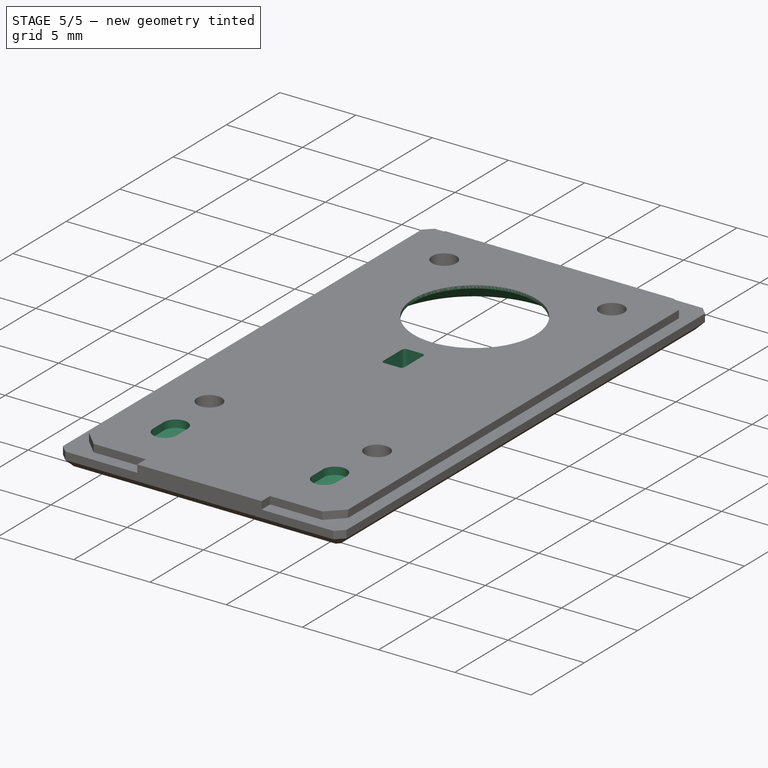
[diagram: stage 5 of 5 — iso view after this stage's code; geometry added in this stage tinted green]
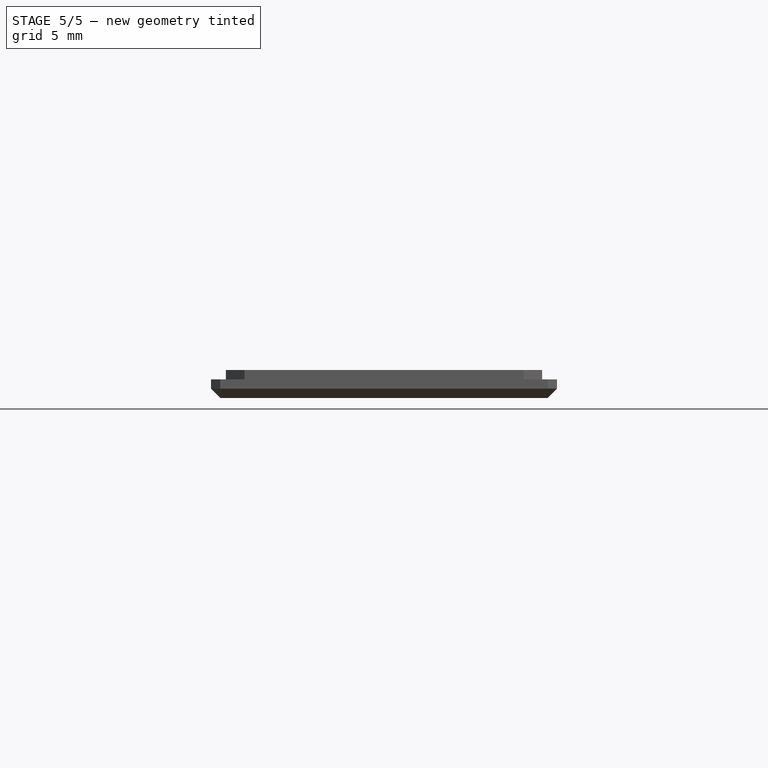
[diagram: stage 5 of 5 — front view after this stage's code; geometry added in this stage tinted green]
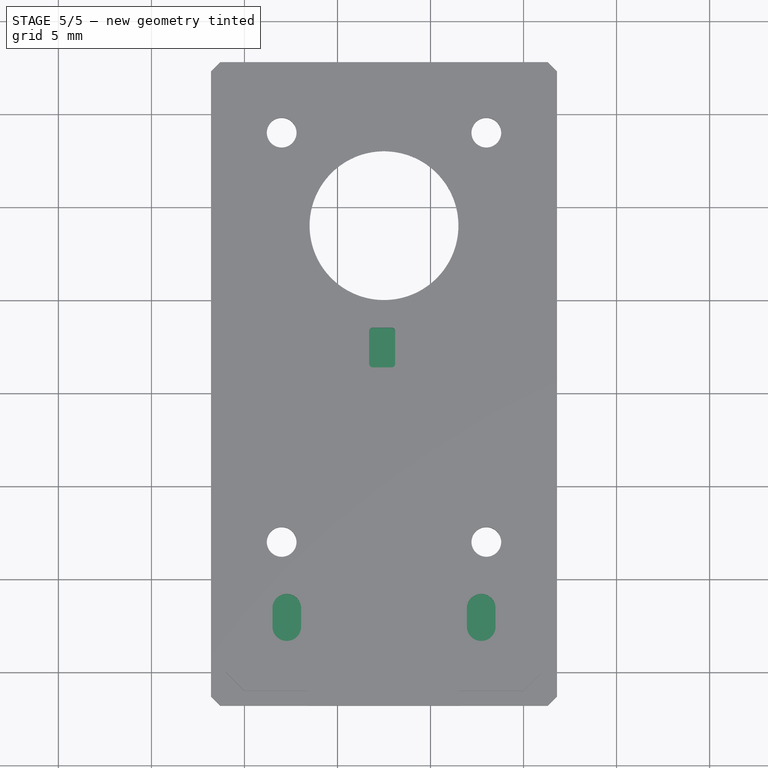
[diagram: stage 5 of 5 — top view after this stage's code; geometry added in this stage tinted green]
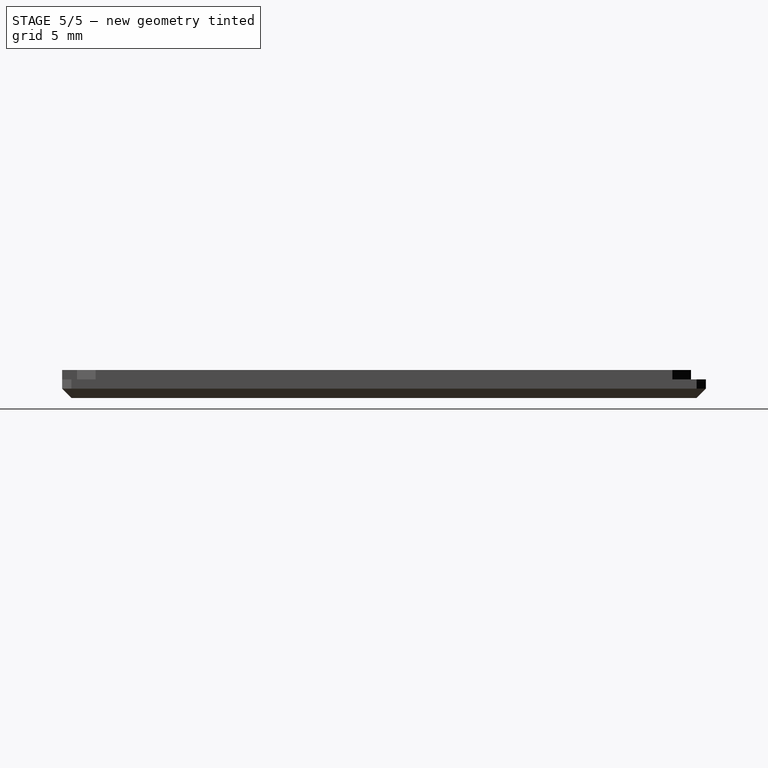
[diagram: stage 5 of 5 — right view after this stage's code; geometry added in this stage tinted green]
FEATURE [Sketcher::SketchObject] Sketch015
  ArcFitTolerance = 1e-06
  AttachmentSupport = -> [Hole]
  ExternalGeometry = -> [Binder002]
  FullyConstrained = true
  MakeInternals = false
  MapMode = 5
  sketch-geometry (14):
    g0: GeomPoint X=7.4 Y=17.45 Z=0
    g1: LineSegment StartX=8.1 StartY=16.58 StartZ=0 EndX=8.1 EndY=18.32 EndZ=0
    g2: LineSegment StartX=7.9 StartY=18.52 StartZ=0 EndX=6.9 EndY=18.52 EndZ=0
    g3: LineSegment StartX=6.7 StartY=18.32 StartZ=0 EndX=6.7 EndY=16.58 EndZ=0
    g4: LineSegment StartX=6.9 StartY=16.38 StartZ=0 EndX=7.9 EndY=16.38 EndZ=0
    g5: GeomPoint [constr] X=7.4 Y=17.45 Z=0
    g6: ArcOfCircle CenterX=6.9 CenterY=18.32 CenterZ=0 NormalX=0 NormalY=0 NormalZ=1 AngleXU=0 Radius=0.2 StartAngle=1.5708 EndAngle=3.14159
    g7: GeomPoint [constr] X=6.7 Y=18.52 Z=0
    g8: ArcOfCircle CenterX=7.9 CenterY=18.32 CenterZ=0 NormalX=0 NormalY=0 NormalZ=1 AngleXU=0 Radius=0.2 StartAngle=-1.8e-15 EndAngle=1.5708
    g9: GeomPoint [constr] X=8.1 Y=18.52 Z=0
    g10: ArcOfCircle CenterX=7.9 CenterY=16.58 CenterZ=0 NormalX=0 NormalY=0 NormalZ=1 AngleXU=0 Radius=0.2 StartAngle=4.71239 EndAngle=6.28319
    g11: GeomPoint [constr] X=8.1 Y=16.38 Z=0
    g12: ArcOfCircle CenterX=6.9 CenterY=16.58 CenterZ=0 NormalX=0 NormalY=0 NormalZ=1 AngleXU=0 Radius=0.2 StartAngle=3.14159 EndAngle=4.71239
    g13: GeomPoint [constr] X=6.7 Y=16.38 Z=0
  constraints (29):
    c: Symmetric(g-4,g-3,g0)
    c: Vertical(g1)
    c: Vertical(g3)
    c: Horizontal(g2)
    c: Horizontal(g4)
    c: Symmetric(g7,g11,g5)
    c: Coincident(g5,g0)
    c: DistanceX(g7,g-4) = 0.3
    c: DistanceY(g-4,g9) = 0.3
    c: PointOnObject(g7,g2)
    c: PointOnObject(g7,g3)
    c: Tangent(g2,g6) = -1.5708
    c: Tangent(g3,g6) = -1.5708
    c: PointOnObject(g9,g2)
    c: PointOnObject(g9,g1)
    c: Tangent(g2,g8) = -1.5708
    c: Tangent(g1,g8) = -1.5708
    c: PointOnObject(g11,g1)
    c: PointOnObject(g11,g4)
    c: Tangent(g1,g10) = -1.5708
    c: Tangent(g4,g10) = -1.5708
    c: PointOnObject(g13,g4)
    c: PointOnObject(g13,g3)
    c: Tangent(g4,g12) = -1.5708
    c: Tangent(g3,g12) = -1.5708
    c: Equal(g12,g10)
    c: Equal(g10,g8)
    c: Equal(g8,g6)
    c: Radius(g6) = 0.2
FEATURE [PartDesign::Pocket] Pocket003
  BaseFeature = -> Hole
  Direction = (0,0,-1)
  Length = 1.1
  Length2 = 5
  Profile = -> Sketch015
  ReferenceAxis = -> Sketch015 [N_Axis]
  Suppressed = false
  Type = 0
FEATURE [Sketcher::SketchObject] Sketch016
  ArcFitTolerance = 1e-06
  AttachmentSupport = -> [Pocket003]
  ExternalGeometry = -> [Pocket003,Binder002]
  FullyConstrained = true
  MakeInternals = false
  MapMode = 5
  Placement = pos=(0,0,-1.5) rot=(1,0,0;3.14159rad)
  sketch-geometry (2):
    g0: GeomPoint X=7.5 Y=1.3 Z=0
    g1: Circle CenterX=7.5 CenterY=-24 CenterZ=0 NormalX=0 NormalY=0 NormalZ=1 AngleXU=0 Radius=4
  constraints (4):
    c: Symmetric(g-3,g-3,g0)
    c: Vertical(g1,g0)
    c: DistanceY(g-4,g1) = 7
    c: Radius(g1) = 4
FEATURE [PartDesign::Pocket] Pocket004
  BaseFeature = -> Pocket003
  Direction = (0,0,1)
  Length = 5
  Length2 = 5
  Profile = -> Sketch016
  ReferenceAxis = -> Sketch016 [N_Axis]
  Suppressed = false
  Type = 0
FEATURE [Sketcher::SketchObject] Sketch017
  ArcFitTolerance = 1e-06
  ExternalGeometry = -> [Binder002]
  FullyConstrained = true
  MakeInternals = false
  MapMode = 5
  sketch-geometry (10):
    g0: GeomPoint X=2.275 Y=2.94 Z=0
    g1: GeomPoint X=12.725 Y=2.94 Z=0
    g2: ArcOfCircle CenterX=2.275 CenterY=3.435 CenterZ=0 NormalX=0 NormalY=0 NormalZ=1 AngleXU=0 Radius=0.77 StartAngle=2e-16 EndAngle=3.14159
    g3: ArcOfCircle CenterX=2.275 CenterY=2.445 CenterZ=0 NormalX=0 NormalY=0 NormalZ=1 AngleXU=0 Radius=0.77 StartAngle=3.14159 EndAngle=6.28319
    g4: LineSegment StartX=3.045 StartY=3.435 StartZ=0 EndX=3.045 EndY=2.445 EndZ=0
    g5: LineSegment StartX=1.505 StartY=3.435 StartZ=0 EndX=1.505 EndY=2.445 EndZ=0
    g6: ArcOfCircle CenterX=12.725 CenterY=3.435 CenterZ=0 NormalX=0 NormalY=0 NormalZ=1 AngleXU=0 Radius=0.77 StartAngle=1e-16 EndAngle=3.14159
    g7: ArcOfCircle CenterX=12.725 CenterY=2.445 CenterZ=0 NormalX=0 NormalY=0 NormalZ=1 AngleXU=0 Radius=0.77 StartAngle=3.14159 EndAngle=6.28319
    g8: LineSegment StartX=13.495 StartY=3.435 StartZ=0 EndX=13.495 EndY=2.445 EndZ=0
    g9: LineSegment StartX=11.955 StartY=3.435 StartZ=0 EndX=11.955 EndY=2.445 EndZ=0
  constraints (18):
    c: Symmetric(g-3,g-5,g0)
    c: Symmetric(g-8,g-7,g1)
    c: Tangent(g2,g4) = 1.5708
    c: Tangent(g2,g5) = -1.5708
    c: Tangent(g3,g4) = 1.5708
    c: Tangent(g3,g5) = -1.5708
    c: Equal(g2,g3)
    c: Tangent(g6,g8) = 1.5708
    c: Tangent(g6,g9) = -1.5708
    c: Tangent(g7,g8) = 1.5708
    c: Tangent(g7,g9) = -1.5708
    c: Equal(g6,g7)
    c: Coincident(g2,g-3)
    c: Coincident(g3,g-5)
    c: DistanceX(g2,g-4) = 0.5
    c: Coincident(g7,g-7)
    c: Coincident(g6,g-6)
    c: DistanceX(g6,g-6) = 0.5
FEATURE [PartDesign::Pocket] Pocket005
  BaseFeature = -> Pocket004
  Direction = (0,0,-1)
  Length = 0.5
  Length2 = 5
  Profile = -> Sketch017
  ReferenceAxis = -> Sketch017 [N_Axis]
  Suppressed = false
  Type = 0
FEATURE [PartDesign::Body] Body  label="Bottom"
  AllowCompound = false
  Group = -> [Binder,Sketch,Pad,Thickness,Sketch001,Pad001,Sketch002,Pocket,Sketch003,Pad002,Sketch004,Pocket001,Sketch009,Pad006,Sketch010,Pocket002,Fillet,Chamfer,Chamfer001,Chamfer005]
  Origin = -> Origin003
  Tip = -> Chamfer005
FEATURE [PartDesign::Chamfer] Chamfer006
  Angle = 45
  Base = -> Pocket005 [Edge80]
  BaseFeature = -> Pocket005
  ChamferType = 1
  FlipDirection = false
  Refine = true
  Size = 1.8
  Size2 = 1.3
  SupportTransform = false
  Suppressed = false
  UseAllEdges = false
FEATURE [PartDesign::Body] Body001  label="Lid"
  AllowCompound = false
  Group = -> [Binder001,Sketch011,Pad007,Binder002,Sketch012,Pad008,Sketch013,Pad009,Chamfer002,Sketch014,Hole,Sketch015,Pocket003,Sketch016,Pocket004,Sketch017,Pocket005,Chamfer006]
  Origin = -> Origin004
  Tip = -> Chamfer006
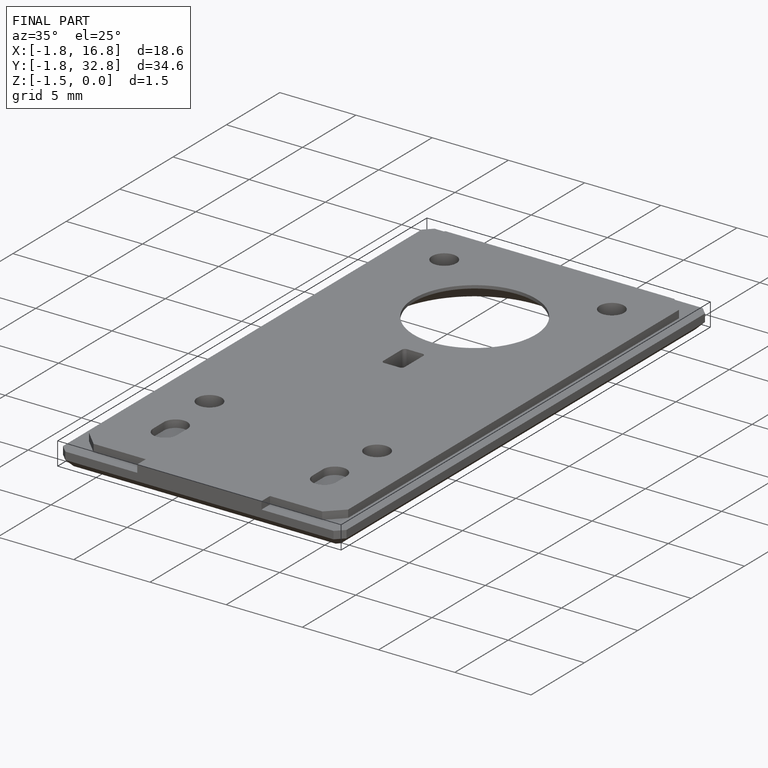
[diagram: finished part — iso view with bounding-box wireframe]
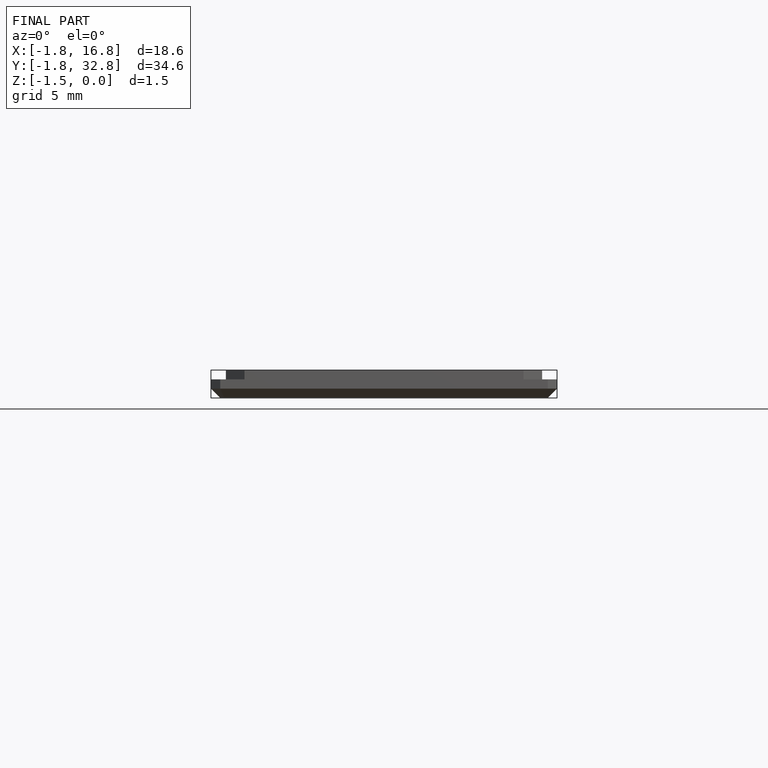
[diagram: finished part — front view with bounding-box wireframe]
